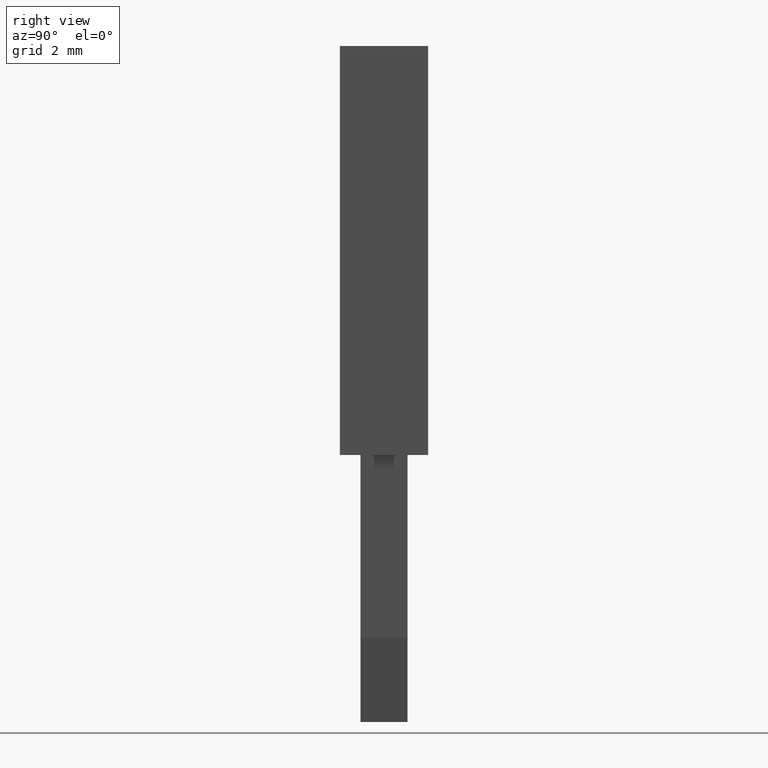
[diagram: clean part render]
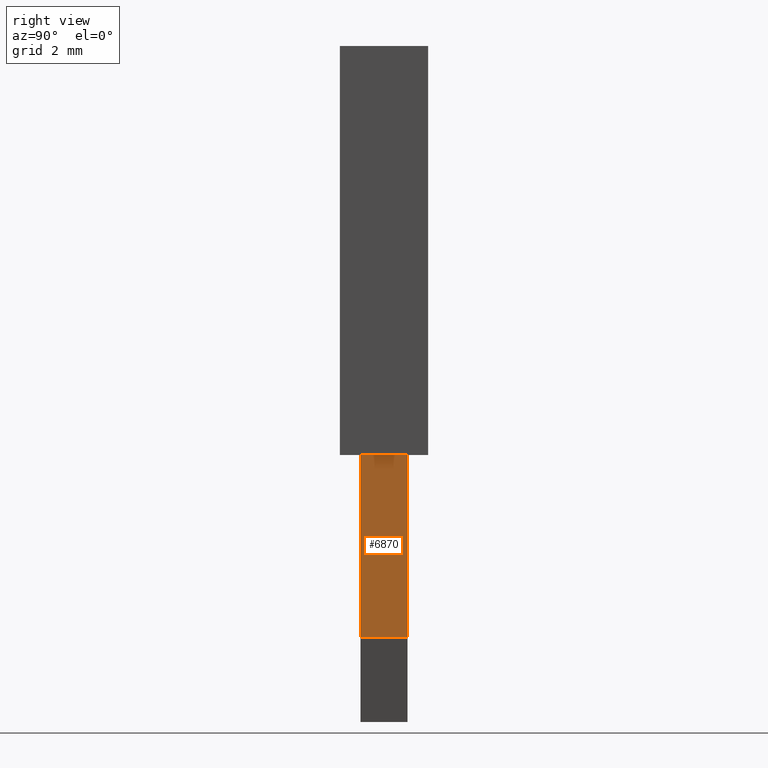
[diagram: same view with one face highlighted and labeled with its STEP entity id]
A machine part, right view. The second image highlights one B-rep face of the part: STEP entity #6870.
In plain terms, the highlighted planar face has unit normal (1, -0, 0).
Its self-contained STEP definition (entity closure, byte-faithful):
#3860=CARTESIAN_POINT('',(4.90716722167658,-23.0750000000003,
57.7999999990348));
#3870=VERTEX_POINT('',#3860);
#3900=CARTESIAN_POINT('',(5.60716722168535,-23.0750000000002,
57.7999999990348));
#3910=DIRECTION('',(-1.,-1.26010313294955E-13,-1.14423774522321E-17));
#3920=VECTOR('',#3910,1.);
#3930=LINE('',#3900,#3920);
#3940=CARTESIAN_POINT('',(3.30716722167658,-23.0750000000005,
57.7999999990348));
#3950=VERTEX_POINT('',#3940);
#3960=EDGE_CURVE('',#3870,#3950,#3930,.T.);
#6240=CARTESIAN_POINT('',(3.30716722167522,-12.305124,57.7999999990348))
;
#6250=DIRECTION('',(-1.26010313294958E-13,1.,-9.11930314421364E-17));
#6260=VECTOR('',#6250,1.);
#6270=LINE('',#6240,#6260);
#6280=CARTESIAN_POINT('',(3.30716722167736,-29.2807420624753,
57.7999999990348));
#6290=VERTEX_POINT('',#6280);
#6300=EDGE_CURVE('',#6290,#3950,#6270,.T.);
#6640=CARTESIAN_POINT('',(3.30716722169466,-17.9750000022644,
57.7999999990348));
#6650=DIRECTION('',(-1.14423774522562E-17,9.1193031442135E-17,1.));
#6660=DIRECTION('',(1.26010313294955E-13,-1.,9.11930314421364E-17));
#6670=AXIS2_PLACEMENT_3D('',#6640,#6650,#6660);
#6680=PLANE('',#6670);
#6690=CARTESIAN_POINT('',(5.60716722168535,-29.280742062475,
57.7999999990348));
#6700=DIRECTION('',(1.,1.20770879960385E-13,1.14423774522476E-17));
#6710=VECTOR('',#6700,1.);
#6720=LINE('',#6690,#6710);
#6730=CARTESIAN_POINT('',(4.90716722167736,-29.2807420624751,
57.7999999990348));
#6740=VERTEX_POINT('',#6730);
#6750=EDGE_CURVE('',#6290,#6740,#6720,.T.);
#6760=ORIENTED_EDGE('',*,*,#6750,.T.);
#6770=ORIENTED_EDGE('',*,*,#6300,.F.);
#6780=ORIENTED_EDGE('',*,*,#3960,.T.);
#6790=CARTESIAN_POINT('',(4.90716722167522,-12.305124,57.7999999990348))
;
#6800=DIRECTION('',(-1.26010313294958E-13,1.,-9.11930314421364E-17));
#6810=VECTOR('',#6800,1.);
#6820=LINE('',#6790,#6810);
#6830=EDGE_CURVE('',#6740,#3870,#6820,.T.);
#6840=ORIENTED_EDGE('',*,*,#6830,.T.);
#6850=EDGE_LOOP('',(#6840,#6780,#6770,#6760));
#6860=FACE_OUTER_BOUND('',#6850,.T.);
#6870=ADVANCED_FACE('',(#6860),#6680,.T.);